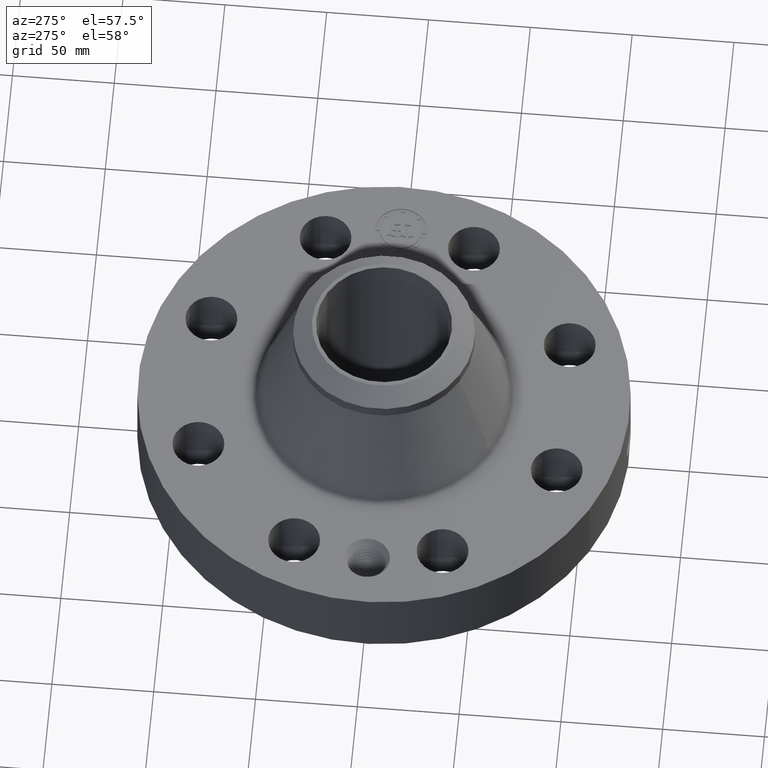
[diagram: clean part render]
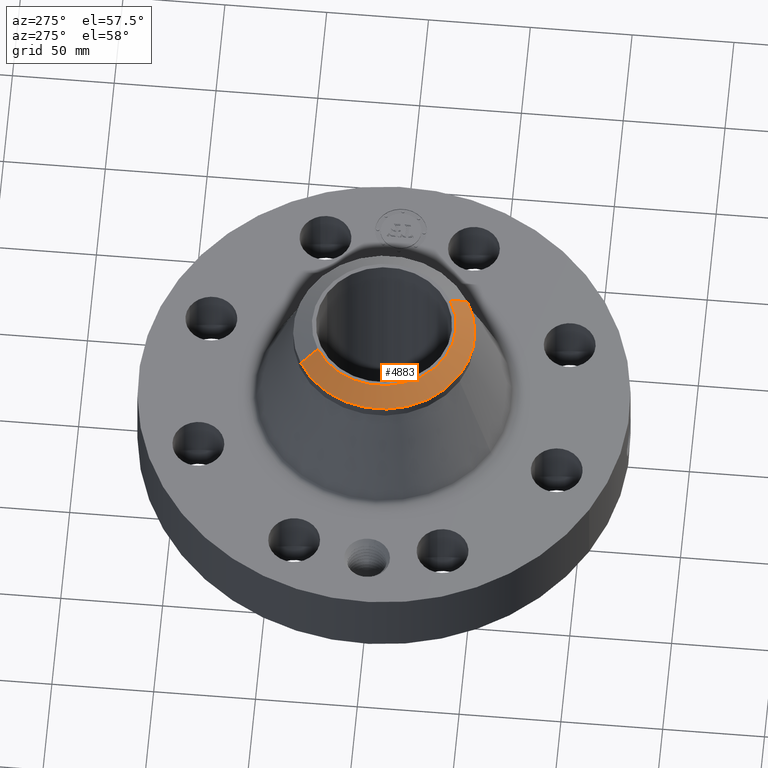
[diagram: same view with one face highlighted and labeled with its STEP entity id]
A machine part, auxiliary view. The second image highlights one B-rep face of the part: STEP entity #4883.
In plain terms, the highlighted conical surface has half-angle 52.5 deg.
Its self-contained STEP definition (entity closure, byte-faithful):
#3557=AXIS2_PLACEMENT_3D('Circle Axis2P3D',#3555,#3556,$) ;
#3570=AXIS2_PLACEMENT_3D('Circle Axis2P3D',#3568,#3569,$) ;
#4436=AXIS2_PLACEMENT_3D('Circle Axis2P3D',#4434,#4435,$) ;
#4856=AXIS2_PLACEMENT_3D('Cone Axis2P3D',#4853,#4854,#4855) ;
#3538=CARTESIAN_POINT('Vertex',(-0.838994692561,-1.53576948331,3.97433022715)) ;
#3552=CARTESIAN_POINT('Vertex',(0.838994692561,-1.53576948331,3.97433022715)) ;
#3555=CARTESIAN_POINT('Axis2P3D Location',(0.,0.,3.97433022715)) ;
#3568=CARTESIAN_POINT('Axis2P3D Location',(0.,0.,3.97433022715)) ;
#3572=CARTESIAN_POINT('Vertex',(-0.838994692561,1.53576948331,3.97433022715)) ;
#4429=CARTESIAN_POINT('Vertex',(0.666756349061,-1.22048931033,4.25000000002)) ;
#4431=CARTESIAN_POINT('Vertex',(-0.666756349061,1.22048931033,4.25000000002)) ;
#4434=CARTESIAN_POINT('Axis2P3D Location',(0.,0.,4.25000000002)) ;
#4853=CARTESIAN_POINT('Axis2P3D Location',(0.,0.,4.25000000002)) ;
#4858=CARTESIAN_POINT('Line Origine',(-0.752875520811,1.37812939682,4.11216511359)) ;
#4863=CARTESIAN_POINT('Line Origine',(0.752875520811,-1.37812939682,4.11216511359)) ;
#3556=DIRECTION('Axis2P3D Direction',(0.,0.,-0.0393700787402)) ;
#3569=DIRECTION('Axis2P3D Direction',(0.,0.,-0.0393700787402)) ;
#4435=DIRECTION('Axis2P3D Direction',(0.,0.,-0.0393700787402)) ;
#4854=DIRECTION('Axis2P3D Direction',(-0.,-0.,-0.0393700787402)) ;
#4855=DIRECTION('Axis2P3D XDirection',(0.0188750212049,-0.0345504945626,0.)) ;
#4859=DIRECTION('Vector Direction',(-0.014974561121,0.02741075027,-0.023966985394)) ;
#4864=DIRECTION('Vector Direction',(0.014974561121,-0.02741075027,-0.023966985394)) ;
#4860=VECTOR('Line Direction',#4859,0.0393700787402) ;
#4865=VECTOR('Line Direction',#4864,0.0393700787402) ;
#4877=ORIENTED_EDGE('',*,*,#4867,.F.) ;
#4878=ORIENTED_EDGE('',*,*,#4438,.F.) ;
#4879=ORIENTED_EDGE('',*,*,#4862,.T.) ;
#4880=ORIENTED_EDGE('',*,*,#3574,.T.) ;
#4881=ORIENTED_EDGE('',*,*,#3559,.F.) ;
#4883=ADVANCED_FACE('PartBody',(#4882),#4857,.T.) ;
#3558=CIRCLE('generated circle',#3557,1.75000000001) ;
#3571=CIRCLE('generated circle',#3570,1.75000000001) ;
#4437=CIRCLE('generated circle',#4436,1.39074015749) ;
#4857=CONICAL_SURFACE('Cone',#4856,1.39074015749,0.916297857297) ;
#3559=EDGE_CURVE('',#3553,#3539,#3558,.T.) ;
#3574=EDGE_CURVE('',#3573,#3539,#3571,.F.) ;
#4438=EDGE_CURVE('',#4432,#4430,#4437,.F.) ;
#4862=EDGE_CURVE('',#4432,#3573,#4861,.T.) ;
#4867=EDGE_CURVE('',#4430,#3553,#4866,.T.) ;
#4876=EDGE_LOOP('',(#4877,#4878,#4879,#4880,#4881)) ;
#4882=FACE_OUTER_BOUND('',#4876,.T.) ;
#4861=LINE('Line',#4858,#4860) ;
#4866=LINE('Line',#4863,#4865) ;
#3539=VERTEX_POINT('',#3538) ;
#3553=VERTEX_POINT('',#3552) ;
#3573=VERTEX_POINT('',#3572) ;
#4430=VERTEX_POINT('',#4429) ;
#4432=VERTEX_POINT('',#4431) ;